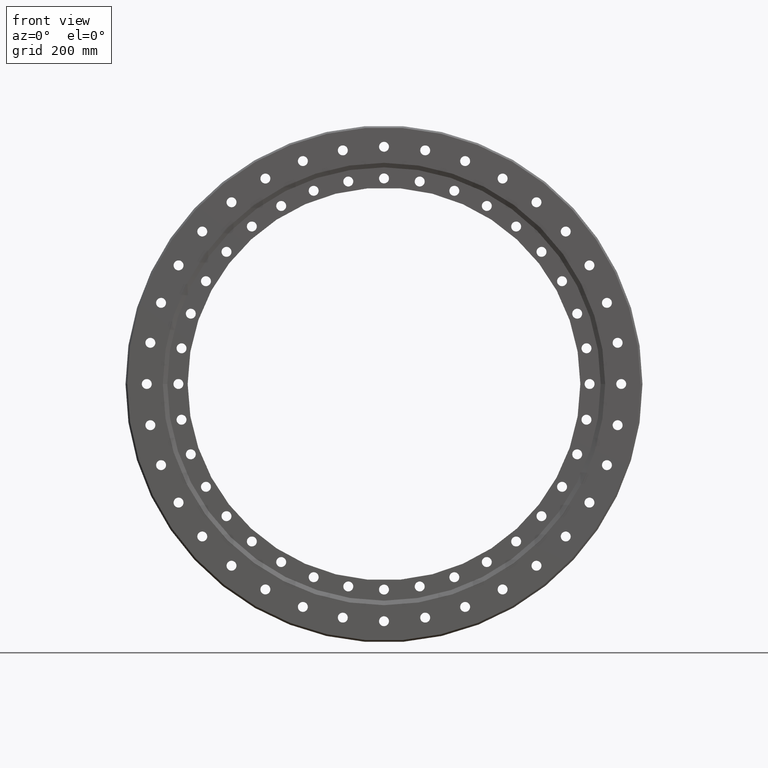
[diagram: clean part render]
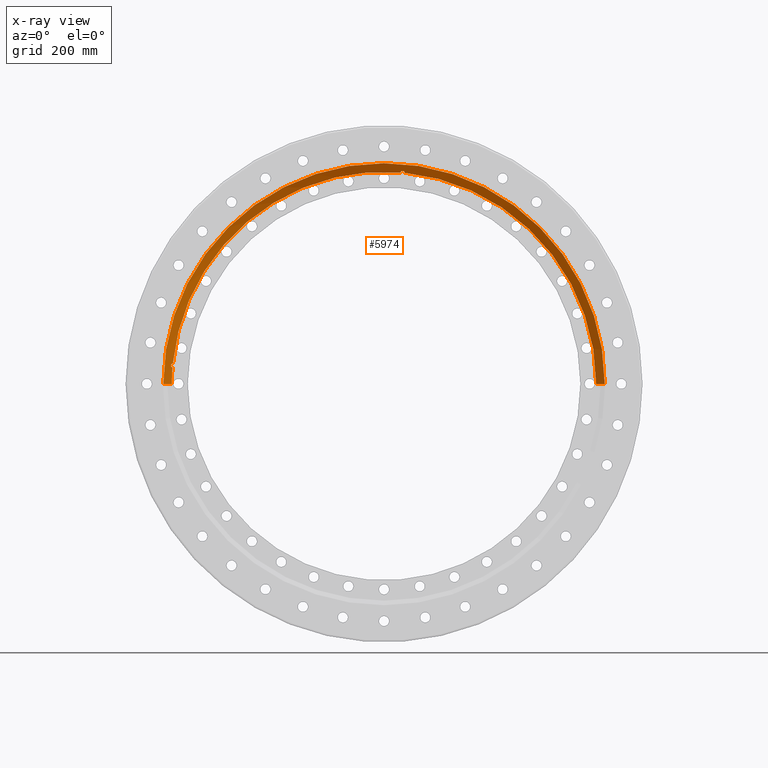
[diagram: x-ray — body ghosted, one internal face saturated and labeled with its STEP entity id]
A machine part, front view, then the same camera in x-ray: the body is ghosted and one INTERNAL B-rep face — a face not visible from any outside direction — is saturated and labeled: STEP entity #5974.
In plain terms, the highlighted conical surface has half-angle 45 deg.
Its self-contained STEP definition (entity closure, byte-faithful):
#16 = CARTESIAN_POINT ( 'NONE',  ( -470.2883873453546900, -3.016875518894359700, 37.78322129344140000 ) ) ;
#33 = DIRECTION ( 'NONE',  ( -1.000000000000000000, 2.724973752409242800E-017, 0.0000000000000000000 ) ) ;
#191 = VERTEX_POINT ( 'NONE', #2867 ) ;
#193 = EDGE_CURVE ( 'NONE', #6986, #6525, #4251, .T. ) ;
#241 = CARTESIAN_POINT ( 'NONE',  ( -488.5000000000000000, -19.71320343559646600, 0.0000000000000000000 ) ) ;
#332 = CARTESIAN_POINT ( 'NONE',  ( -468.5133392268333000, -1.153940232828044600, 36.59990085437674900 ) ) ;
#442 = DIRECTION ( 'NONE',  ( 1.000000000000000000, -2.724973752409242800E-017, 0.0000000000000000000 ) ) ;
#456 = B_SPLINE_CURVE_WITH_KNOTS ( 'NONE', 3,
 ( #5650, #4675, #5231, #7139, #6646, #6549, #6365, #5715, #7159, #4944, #6455, #8259, #6325, #2721, #5276, #5204, #4981, #5600, #5457, #3582, #7076, #4787, #5467, #6198, #6877, #3697, #2315, #676, #4032, #4552, #4003, #4043, #6732, #2448 ),
 .UNSPECIFIED., .F., .F.,
 ( 4, 2, 2, 2, 2, 2, 2, 2, 2, 2, 2, 2, 2, 2, 2, 2, 4 ),
 ( 2.822713062951235100E-007, 0.001892247351334704900, 0.002838229891348962800, 0.003784212431363220700, 0.004730194971377478500, 0.005676177511391736400, 0.006622160051405994200, 0.007095151321413122700, 0.007568142591420252100, 0.008514125131434544700, 0.009460107671448838100, 0.01040609021146313000, 0.01135207275147742100, 0.01229805529149171500, 0.01324403783150600800, 0.01419002037152030000, 0.01513600291153459300 ),
 .UNSPECIFIED. ) ;
#468 = CARTESIAN_POINT ( 'NONE',  ( 8.269005050820909300E-016, -0.7071067811865519000, 0.0000000000000000000 ) ) ;
#591 = EDGE_LOOP ( 'NONE', ( #7954, #5033, #5007, #4197, #4237, #3134, #2527, #2722 ) ) ;
#676 = CARTESIAN_POINT ( 'NONE',  ( 44.85134536036140000, -2.425602846970405800, 469.0730254107163500 ) ) ;
#880 = CARTESIAN_POINT ( 'NONE',  ( -471.3594504217126100, -4.241527767873834300, 39.70060773285987200 ) ) ;
#931 = VERTEX_POINT ( 'NONE', #1457 ) ;
#970 = VERTEX_POINT ( 'NONE', #241 ) ;
#993 = EDGE_CURVE ( 'NONE', #6525, #4189, #7863, .T. ) ;
#1025 = EDGE_CURVE ( 'NONE', #931, #191, #3529, .T. ) ;
#1096 = CARTESIAN_POINT ( 'NONE',  ( 488.5000000000000000, -19.71320343559649400, 5.982399613834819600E-014 ) ) ;
#1225 = CARTESIAN_POINT ( 'NONE',  ( -471.1677799039758300, -4.003637813316986500, 39.13811639626384000 ) ) ;
#1432 = DIRECTION ( 'NONE',  ( -1.000000000000000000, 2.724973752409242800E-017, 0.0000000000000000000 ) ) ;
#1457 = CARTESIAN_POINT ( 'NONE',  ( -468.0737121704400500, -0.7071067776560946400, 36.49007057196993000 ) ) ;
#1577 = EDGE_CURVE ( 'NONE', #970, #4189, #1934, .T. ) ;
#1869 = CIRCLE ( 'NONE', #5626, 469.4939033455901800 ) ;
#1934 = CIRCLE ( 'NONE', #2695, 488.5000000000000000 ) ;
#2315 = CARTESIAN_POINT ( 'NONE',  ( 44.60076216258812600, -2.824702474229392000, 469.4978157878431400 ) ) ;
#2319 = CARTESIAN_POINT ( 'NONE',  ( -471.0917410661549000, -4.240985183111313900, 42.75426106756076900 ) ) ;
#2448 = CARTESIAN_POINT ( 'NONE',  ( 45.34444272495541400, -0.7071067776560757700, 467.2990549844141700 ) ) ;
#2452 = CARTESIAN_POINT ( 'NONE',  ( -469.4978157878434800, -2.824702474229352500, 44.60076216258652000 ) ) ;
#2468 = CARTESIAN_POINT ( 'NONE',  ( -470.8075894766611800, -4.005015791665369000, 43.27105911936653400 ) ) ;
#2471 = CARTESIAN_POINT ( 'NONE',  ( -470.6441478052939800, -3.864014277970561700, 43.50778515500315500 ) ) ;
#2480 = CARTESIAN_POINT ( 'NONE',  ( -470.2898604524966100, -3.550682057762019300, 43.93396304941725100 ) ) ;
#2483 = CARTESIAN_POINT ( 'NONE',  ( -470.1013855917206600, -3.380511123524248900, 44.12128384763613600 ) ) ;
#2527 = ORIENTED_EDGE ( 'NONE', *, *, #8110, .F. ) ;
#2627 = CARTESIAN_POINT ( 'NONE',  ( 8.269005050820909300E-016, -0.7071067811865519000, 0.0000000000000000000 ) ) ;
#2695 = AXIS2_PLACEMENT_3D ( 'NONE', #2997, #2992, #6412 ) ;
#2721 = CARTESIAN_POINT ( 'NONE',  ( 40.45777955415023500, -4.433017279130162100, 471.4872038581857500 ) ) ;
#2722 = ORIENTED_EDGE ( 'NONE', *, *, #1025, .F. ) ;
#2867 = CARTESIAN_POINT ( 'NONE',  ( -467.2990549844142800, -0.7071067776560962000, 45.34444272495378000 ) ) ;
#2922 = CARTESIAN_POINT ( 'NONE',  ( -468.1993444638520700, -1.588774412354232900, 45.19465404533379200 ) ) ;
#2945 = CARTESIAN_POINT ( 'NONE',  ( -468.4205497225802300, -1.802470151295730600, 45.12712991670027700 ) ) ;
#2963 = CARTESIAN_POINT ( 'NONE',  ( -468.8573858392785500, -2.220877727135714100, 44.95544788327929100 ) ) ;
#2992 = DIRECTION ( 'NONE',  ( 2.727064569436389700E-017, 1.000000000000000000, 0.0000000000000000000 ) ) ;
#2997 = CARTESIAN_POINT ( 'NONE',  ( 3.085919771868425700E-016, -19.71320343559648000, 0.0000000000000000000 ) ) ;
#3065 = CARTESIAN_POINT ( 'NONE',  ( -467.5251056806859000, -0.9305637533623608600, 45.32852922046402700 ) ) ;
#3081 = CARTESIAN_POINT ( 'NONE',  ( -467.7517437786024200, -1.152948266967102700, 45.29542033360447600 ) ) ;
#3086 = CARTESIAN_POINT ( 'NONE',  ( -471.2135841692359000, -4.336788134466273100, 42.47088994207354800 ) ) ;
#3134 = ORIENTED_EDGE ( 'NONE', *, *, #8302, .F. ) ;
#3166 = CARTESIAN_POINT ( 'NONE',  ( -470.1112483913010500, -2.826123162656479800, 37.60559852971034900 ) ) ;
#3194 = CARTESIAN_POINT ( 'NONE',  ( -467.2990549844142800, -0.7071067776560962000, 45.34444272495378000 ) ) ;
#3529 = B_SPLINE_CURVE_WITH_KNOTS ( 'NONE', 3,
 ( #9036, #332, #8687, #8635, #8559, #3166, #16, #8694, #8867, #9024, #1225, #880, #5985, #5097, #8052, #8891, #7155, #6223, #6245, #3086, #2319, #2468, #2471, #2480, #2483, #6299, #2452, #5718, #2963, #2945, #2922, #3081, #3065, #3194 ),
 .UNSPECIFIED., .F., .F.,
 ( 4, 2, 2, 2, 2, 2, 2, 2, 2, 2, 2, 2, 2, 2, 2, 2, 4 ),
 ( 2.822713062938615900E-007, 0.001892247351334742400, 0.002838229891349019200, 0.003784212431363295700, 0.004730194971377573900, 0.005676177511391850000, 0.006622160051406125200, 0.007095151321413252800, 0.007568142591420380500, 0.008514125131434655700, 0.009460107671448933500, 0.01040609021146321000, 0.01135207275147748600, 0.01229805529149176200, 0.01324403783150604000, 0.01419002037152031600, 0.01513600291153459500 ),
 .UNSPECIFIED. ) ;
#3582 = CARTESIAN_POINT ( 'NONE',  ( 42.47088994207516800, -4.336788134466283800, 471.2135841692358400 ) ) ;
#3697 = CARTESIAN_POINT ( 'NONE',  ( 44.45431329583865200, -3.018305781422078800, 469.7061875292931700 ) ) ;
#3928 = CARTESIAN_POINT ( 'NONE',  ( 8.269005050820909300E-016, -0.7071067811865519000, 0.0000000000000000000 ) ) ;
#4003 = CARTESIAN_POINT ( 'NONE',  ( 45.19465404533541900, -1.588774412354264600, 468.1993444638519000 ) ) ;
#4032 = CARTESIAN_POINT ( 'NONE',  ( 44.95544788328091800, -2.220877727135738500, 468.8573858392780900 ) ) ;
#4043 = CARTESIAN_POINT ( 'NONE',  ( 45.29542033360608900, -1.152948266967135600, 467.7517437786021300 ) ) ;
#4189 = VERTEX_POINT ( 'NONE', #1096 ) ;
#4197 = ORIENTED_EDGE ( 'NONE', *, *, #993, .F. ) ;
#4237 = ORIENTED_EDGE ( 'NONE', *, *, #193, .F. ) ;
#4251 = CIRCLE ( 'NONE', #5815, 469.4939033455901800 ) ;
#4271 = CARTESIAN_POINT ( 'NONE',  ( 36.49007057197155700, -0.7071067776560749900, 468.0737121704398800 ) ) ;
#4552 = CARTESIAN_POINT ( 'NONE',  ( 45.12712991670190400, -1.802470151295757300, 468.4205497225800600 ) ) ;
#4649 = DIRECTION ( 'NONE',  ( -2.727064569436389700E-017, -1.000000000000000000, 0.0000000000000000000 ) ) ;
#4675 = CARTESIAN_POINT ( 'NONE',  ( 36.59990085437836200, -1.153940232828036100, 468.5133392268331200 ) ) ;
#4787 = CARTESIAN_POINT ( 'NONE',  ( 43.27105911936815400, -4.005015791665367300, 470.8075894766608900 ) ) ;
#4834 = AXIS2_PLACEMENT_3D ( 'NONE', #3928, #4649, #442 ) ;
#4933 = VERTEX_POINT ( 'NONE', #4271 ) ;
#4944 = CARTESIAN_POINT ( 'NONE',  ( 38.88038004657904200, -3.864286015100331100, 471.0492686739777400 ) ) ;
#4953 = EDGE_CURVE ( 'NONE', #6510, #931, #6968, .T. ) ;
#4981 = CARTESIAN_POINT ( 'NONE',  ( 41.08975981220753900, -4.499903043051531000, 471.4996888154948900 ) ) ;
#5002 = DIRECTION ( 'NONE',  ( 2.727064569436389700E-017, 1.000000000000000000, 0.0000000000000000000 ) ) ;
#5007 = ORIENTED_EDGE ( 'NONE', *, *, #1577, .T. ) ;
#5033 = ORIENTED_EDGE ( 'NONE', *, *, #6072, .T. ) ;
#5097 = CARTESIAN_POINT ( 'NONE',  ( -471.4872038581859800, -4.433017279130174500, 40.45777955414867200 ) ) ;
#5204 = CARTESIAN_POINT ( 'NONE',  ( 40.93229617189056300, -4.491533667237478200, 471.5049836600486500 ) ) ;
#5231 = CARTESIAN_POINT ( 'NONE',  ( 36.77394141853374500, -1.588828485507503200, 468.9359782564573000 ) ) ;
#5276 = CARTESIAN_POINT ( 'NONE',  ( 40.61678426968111900, -4.458246559416664000, 471.4988571525622700 ) ) ;
#5289 = AXIS2_PLACEMENT_3D ( 'NONE', #2627, #7906, #1432 ) ;
#5457 = CARTESIAN_POINT ( 'NONE',  ( 41.87818202542902700, -4.465894969463136900, 471.3962451208906300 ) ) ;
#5467 = CARTESIAN_POINT ( 'NONE',  ( 43.50778515500475400, -3.864014277970572800, 470.6441478052935800 ) ) ;
#5600 = CARTESIAN_POINT ( 'NONE',  ( 41.56127366223144300, -4.500191386838539900, 471.4587288961735700 ) ) ;
#5626 = AXIS2_PLACEMENT_3D ( 'NONE', #8132, #7522, #7515 ) ;
#5650 = CARTESIAN_POINT ( 'NONE',  ( 36.49007057197155700, -0.7071067776560749900, 468.0737121704398800 ) ) ;
#5715 = CARTESIAN_POINT ( 'NONE',  ( 38.18051992038152100, -3.379934837996745300, 470.6205522857616200 ) ) ;
#5718 = CARTESIAN_POINT ( 'NONE',  ( -469.0730254107165300, -2.425602846970363700, 44.85134536035981500 ) ) ;
#5815 = AXIS2_PLACEMENT_3D ( 'NONE', #468, #5002, #33 ) ;
#5974 = ADVANCED_FACE ( 'NONE', ( #7912 ), #7186, .T. ) ;
#5985 = CARTESIAN_POINT ( 'NONE',  ( -471.4289200059537300, -4.335530855950706200, 39.99503148002897700 ) ) ;
#6072 = EDGE_CURVE ( 'NONE', #6510, #970, #8144, .T. ) ;
#6198 = CARTESIAN_POINT ( 'NONE',  ( 43.93396304941887100, -3.550682057762032200, 470.2898604524962700 ) ) ;
#6223 = CARTESIAN_POINT ( 'NONE',  ( -471.4587288961739700, -4.500191386838539000, 41.56127366222984400 ) ) ;
#6237 = VECTOR ( 'NONE', #6498, 1000.000000000000000 ) ;
#6245 = CARTESIAN_POINT ( 'NONE',  ( -471.3962451208909100, -4.465894969463133400, 41.87818202542742800 ) ) ;
#6299 = CARTESIAN_POINT ( 'NONE',  ( -469.7061875292933500, -3.018305781422042400, 44.45431329583705300 ) ) ;
#6325 = CARTESIAN_POINT ( 'NONE',  ( 39.99503148003057600, -4.335530855950690200, 471.4289200059536100 ) ) ;
#6365 = CARTESIAN_POINT ( 'NONE',  ( 37.78322129344303400, -3.016875518894349000, 470.2883873453544100 ) ) ;
#6412 = DIRECTION ( 'NONE',  ( -1.000000000000000000, 2.840898220637555000E-017, 0.0000000000000000000 ) ) ;
#6455 = CARTESIAN_POINT ( 'NONE',  ( 39.13811639626549500, -4.003637813316985600, 471.1677799039757100 ) ) ;
#6498 = DIRECTION ( 'NONE',  ( -0.7071067811865456900, -0.7071067811865493500, 8.659560562354910700E-017 ) ) ;
#6510 = VERTEX_POINT ( 'NONE', #6977 ) ;
#6511 = CARTESIAN_POINT ( 'NONE',  ( -469.4939033455901800, -0.7071067811865391400, 5.749642059513737500E-014 ) ) ;
#6525 = VERTEX_POINT ( 'NONE', #7014 ) ;
#6549 = CARTESIAN_POINT ( 'NONE',  ( 37.60559852971194800, -2.826123162656440300, 470.1112483913007600 ) ) ;
#6646 = CARTESIAN_POINT ( 'NONE',  ( 37.28615633735655900, -2.428870423687686100, 469.7381911362335800 ) ) ;
#6732 = CARTESIAN_POINT ( 'NONE',  ( 45.32852922046566100, -0.9305637533623503100, 467.5251056806856700 ) ) ;
#6877 = CARTESIAN_POINT ( 'NONE',  ( 44.12128384763773400, -3.380511123524281700, 470.1013855917204900 ) ) ;
#6968 = CIRCLE ( 'NONE', #5289, 469.4939033455901800 ) ;
#6977 = CARTESIAN_POINT ( 'NONE',  ( -469.4939033455901800, -0.7071067811865391400, 5.866020836674717800E-014 ) ) ;
#6986 = VERTEX_POINT ( 'NONE', #7206 ) ;
#7014 = CARTESIAN_POINT ( 'NONE',  ( 469.4939033455901800, -0.7071067811865647800, 0.0000000000000000000 ) ) ;
#7076 = CARTESIAN_POINT ( 'NONE',  ( 42.75426106756241000, -4.240985183111314800, 471.0917410661546700 ) ) ;
#7139 = CARTESIAN_POINT ( 'NONE',  ( 37.14378049378591800, -2.221067987820869700, 469.5410093890639600 ) ) ;
#7155 = CARTESIAN_POINT ( 'NONE',  ( -471.4996888154950600, -4.499903043051532800, 41.08975981220594100 ) ) ;
#7159 = CARTESIAN_POINT ( 'NONE',  ( 38.40211880709121300, -3.553231053604579700, 470.7764125023527400 ) ) ;
#7186 = CONICAL_SURFACE ( 'NONE', #4834, 469.4939033455901800, 0.7853981633974457300 ) ;
#7206 = CARTESIAN_POINT ( 'NONE',  ( 45.34444272495541400, -0.7071067776560757700, 467.2990549844141700 ) ) ;
#7515 = DIRECTION ( 'NONE',  ( -1.000000000000000000, 2.724973752409242800E-017, 0.0000000000000000000 ) ) ;
#7522 = DIRECTION ( 'NONE',  ( 2.727064569436389700E-017, 1.000000000000000000, 0.0000000000000000000 ) ) ;
#7863 = LINE ( 'NONE', #8988, #8991 ) ;
#7906 = DIRECTION ( 'NONE',  ( 2.727064569436389700E-017, 1.000000000000000000, 0.0000000000000000000 ) ) ;
#7912 = FACE_OUTER_BOUND ( 'NONE', #591, .T. ) ;
#7954 = ORIENTED_EDGE ( 'NONE', *, *, #4953, .F. ) ;
#8052 = CARTESIAN_POINT ( 'NONE',  ( -471.4988571525625500, -4.458246559416671100, 40.61678426967949900 ) ) ;
#8110 = EDGE_CURVE ( 'NONE', #191, #4933, #1869, .T. ) ;
#8132 = CARTESIAN_POINT ( 'NONE',  ( 8.269005050820909300E-016, -0.7071067811865519000, 0.0000000000000000000 ) ) ;
#8144 = LINE ( 'NONE', #6511, #6237 ) ;
#8259 = CARTESIAN_POINT ( 'NONE',  ( 39.70060773286149900, -4.241527767873830800, 471.3594504217126100 ) ) ;
#8302 = EDGE_CURVE ( 'NONE', #4933, #6986, #456, .T. ) ;
#8559 = CARTESIAN_POINT ( 'NONE',  ( -469.7381911362337500, -2.428870423687727900, 37.28615633735495300 ) ) ;
#8635 = CARTESIAN_POINT ( 'NONE',  ( -469.5410093890640200, -2.221067987820869700, 37.14378049378428400 ) ) ;
#8687 = CARTESIAN_POINT ( 'NONE',  ( -468.9359782564574200, -1.588828485507503200, 36.77394141853211800 ) ) ;
#8694 = CARTESIAN_POINT ( 'NONE',  ( -470.6205522857616800, -3.379934837996753300, 38.18051992037988600 ) ) ;
#8867 = CARTESIAN_POINT ( 'NONE',  ( -470.7764125023529100, -3.553231053604613400, 38.40211880708960700 ) ) ;
#8891 = CARTESIAN_POINT ( 'NONE',  ( -471.5049836600487100, -4.491533667237479900, 40.93229617188892900 ) ) ;
#8983 = DIRECTION ( 'NONE',  ( 0.7071067811865456900, -0.7071067811865493500, 0.0000000000000000000 ) ) ;
#8988 = CARTESIAN_POINT ( 'NONE',  ( 469.4939033455901800, -0.7071067811865647800, 0.0000000000000000000 ) ) ;
#8991 = VECTOR ( 'NONE', #8983, 1000.000000000000000 ) ;
#9024 = CARTESIAN_POINT ( 'NONE',  ( -471.0492686739779100, -3.864286015100360400, 38.88038004657745000 ) ) ;
#9036 = CARTESIAN_POINT ( 'NONE',  ( -468.0737121704400500, -0.7071067776560946400, 36.49007057196993000 ) ) ;